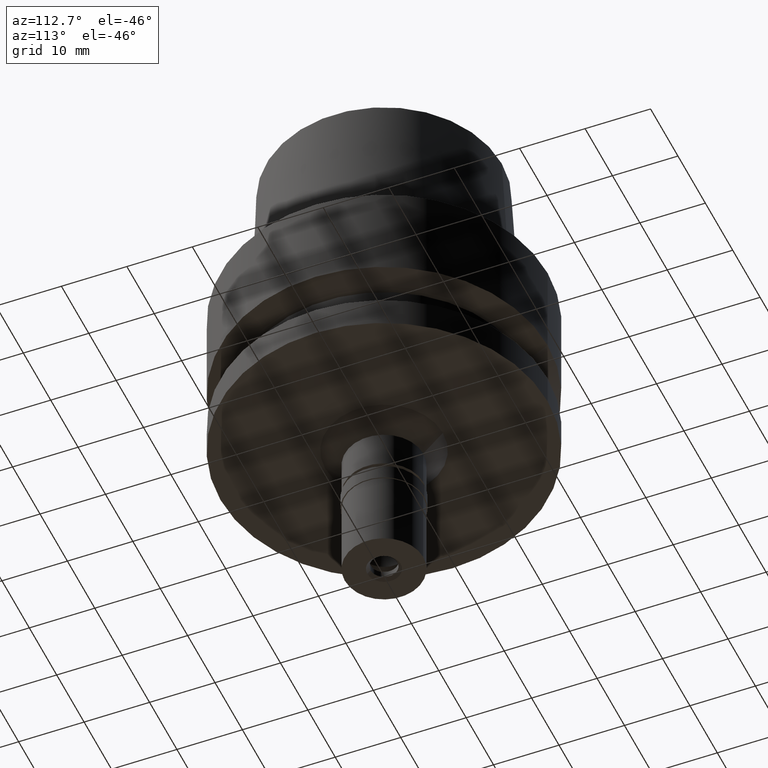
[diagram: clean part render]
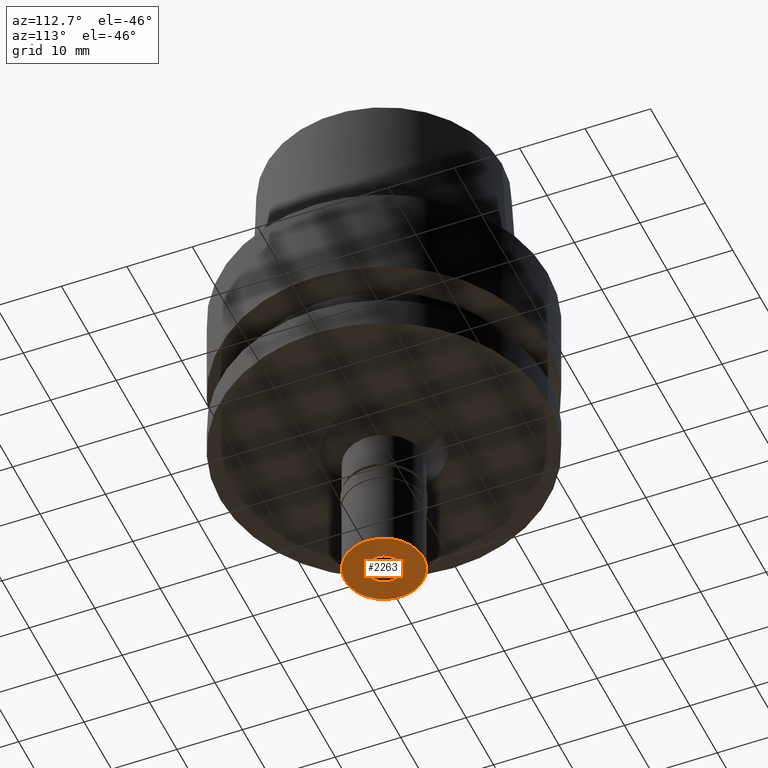
[diagram: same view with one face highlighted and labeled with its STEP entity id]
A machine part, auxiliary view. The second image highlights one B-rep face of the part: STEP entity #2263.
In plain terms, the highlighted planar face has unit normal (0, 0, 1).
Its self-contained STEP definition (entity closure, byte-faithful):
#111 = AXIS2_PLACEMENT_3D ( 'NONE', #305, #1796, #2619 ) ;
#166 = CARTESIAN_POINT ( 'NONE',  ( 0.0000000000000000000, 2.550000000000000266, -14.50000000000000000 ) ) ;
#169 = CARTESIAN_POINT ( 'NONE',  ( 0.0000000000000000000, 0.0000000000000000000, -14.50000000000000000 ) ) ;
#189 = DIRECTION ( 'NONE',  ( 0.0000000000000000000, 1.000000000000000000, 0.0000000000000000000 ) ) ;
#218 = CARTESIAN_POINT ( 'NONE',  ( 0.0000000000000000000, 6.000000000000000000, -14.50000000000000000 ) ) ;
#286 = FACE_BOUND ( 'NONE', #1393, .T. ) ;
#296 = ORIENTED_EDGE ( 'NONE', *, *, #502, .F. ) ;
#305 = CARTESIAN_POINT ( 'NONE',  ( 0.0000000000000000000, 0.0000000000000000000, -14.50000000000000000 ) ) ;
#312 = DIRECTION ( 'NONE',  ( 1.000000000000000000, 0.0000000000000000000, 0.0000000000000000000 ) ) ;
#485 = CARTESIAN_POINT ( 'NONE',  ( 0.0000000000000000000, -2.550000000000000266, -14.50000000000000000 ) ) ;
#502 = EDGE_CURVE ( 'NONE', #670, #2017, #2629, .T. ) ;
#602 = DIRECTION ( 'NONE',  ( 0.0000000000000000000, -1.000000000000000000, 0.0000000000000000000 ) ) ;
#628 = AXIS2_PLACEMENT_3D ( 'NONE', #169, #1832, #602 ) ;
#670 = VERTEX_POINT ( 'NONE', #1480 ) ;
#707 = EDGE_LOOP ( 'NONE', ( #1632, #296 ) ) ;
#709 = CIRCLE ( 'NONE', #800, 6.000000000000000000 ) ;
#800 = AXIS2_PLACEMENT_3D ( 'NONE', #1700, #2525, #189 ) ;
#830 = DIRECTION ( 'NONE',  ( 0.0000000000000000000, 0.0000000000000000000, -1.000000000000000000 ) ) ;
#854 = EDGE_CURVE ( 'NONE', #2017, #670, #709, .T. ) ;
#1032 = CIRCLE ( 'NONE', #628, 2.550000000000000266 ) ;
#1124 = PLANE ( 'NONE',  #1342 ) ;
#1342 = AXIS2_PLACEMENT_3D ( 'NONE', #1951, #2364, #312 ) ;
#1393 = EDGE_LOOP ( 'NONE', ( #1529, #1428 ) ) ;
#1428 = ORIENTED_EDGE ( 'NONE', *, *, #2345, .F. ) ;
#1471 = CIRCLE ( 'NONE', #1646, 2.550000000000000266 ) ;
#1480 = CARTESIAN_POINT ( 'NONE',  ( 0.0000000000000000000, -6.000000000000000000, -14.50000000000000000 ) ) ;
#1529 = ORIENTED_EDGE ( 'NONE', *, *, #2660, .F. ) ;
#1586 = VERTEX_POINT ( 'NONE', #166 ) ;
#1632 = ORIENTED_EDGE ( 'NONE', *, *, #854, .F. ) ;
#1646 = AXIS2_PLACEMENT_3D ( 'NONE', #2695, #830, #1667 ) ;
#1667 = DIRECTION ( 'NONE',  ( 0.0000000000000000000, 1.000000000000000000, 0.0000000000000000000 ) ) ;
#1700 = CARTESIAN_POINT ( 'NONE',  ( 0.0000000000000000000, 0.0000000000000000000, -14.50000000000000000 ) ) ;
#1796 = DIRECTION ( 'NONE',  ( 0.0000000000000000000, 0.0000000000000000000, 1.000000000000000000 ) ) ;
#1832 = DIRECTION ( 'NONE',  ( 0.0000000000000000000, 0.0000000000000000000, -1.000000000000000000 ) ) ;
#1951 = CARTESIAN_POINT ( 'NONE',  ( 0.0000000000000000000, 0.0000000000000000000, -14.50000000000000000 ) ) ;
#2017 = VERTEX_POINT ( 'NONE', #218 ) ;
#2091 = VERTEX_POINT ( 'NONE', #485 ) ;
#2150 = FACE_OUTER_BOUND ( 'NONE', #707, .T. ) ;
#2263 = ADVANCED_FACE ( 'NONE', ( #2150, #286 ), #1124, .F. ) ;
#2345 = EDGE_CURVE ( 'NONE', #2091, #1586, #1032, .T. ) ;
#2364 = DIRECTION ( 'NONE',  ( 0.0000000000000000000, 0.0000000000000000000, 1.000000000000000000 ) ) ;
#2525 = DIRECTION ( 'NONE',  ( 0.0000000000000000000, 0.0000000000000000000, 1.000000000000000000 ) ) ;
#2619 = DIRECTION ( 'NONE',  ( 0.0000000000000000000, -1.000000000000000000, 0.0000000000000000000 ) ) ;
#2629 = CIRCLE ( 'NONE', #111, 6.000000000000000000 ) ;
#2660 = EDGE_CURVE ( 'NONE', #1586, #2091, #1471, .T. ) ;
#2695 = CARTESIAN_POINT ( 'NONE',  ( 0.0000000000000000000, 0.0000000000000000000, -14.50000000000000000 ) ) ;